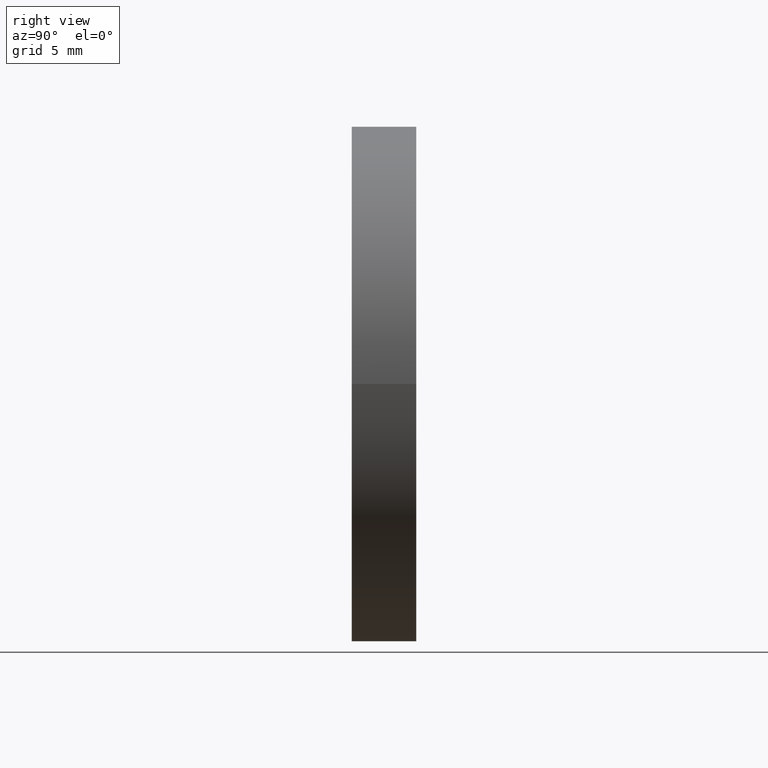
[diagram: clean part render]
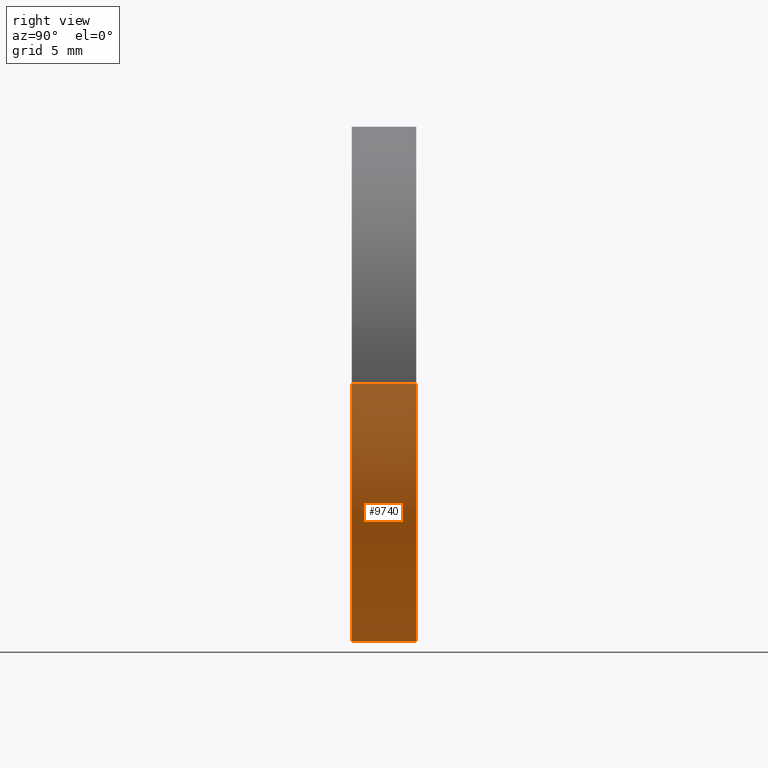
[diagram: same view with one face highlighted and labeled with its STEP entity id]
A machine part, right view. The second image highlights one B-rep face of the part: STEP entity #9740.
In plain terms, the highlighted cylindrical surface (partial cylindrical patch) has radius 20 mm, axis along (0, 1, -0).
Its self-contained STEP definition (entity closure, byte-faithful):
#48 = VERTEX_POINT ( 'NONE', #9935 ) ;
#286 = VECTOR ( 'NONE', #4634, 1000.000000000000000 ) ;
#931 = VERTEX_POINT ( 'NONE', #9288 ) ;
#1179 = LINE ( 'NONE', #5608, #286 ) ;
#1191 = DIRECTION ( 'NONE',  ( -1.000000000000000000, 1.387778780781446662E-15, 0.000000000000000000 ) ) ;
#1698 = EDGE_CURVE ( 'NONE', #931, #9611, #1179, .T. ) ;
#2046 = DIRECTION ( 'NONE',  ( 1.387778780781446464E-15, 1.000000000000000000, -0.000000000000000000 ) ) ;
#2667 = CARTESIAN_POINT ( 'NONE',  ( 6.938893903907228378E-15, 4.999999999999997335, 0.000000000000000000 ) ) ;
#2921 = EDGE_LOOP ( 'NONE', ( #7787, #10948, #13937, #4877 ) ) ;
#4261 = CARTESIAN_POINT ( 'NONE',  ( -19.99999999999999645, 5.000000000000024869, 0.000000000000000000 ) ) ;
#4268 = AXIS2_PLACEMENT_3D ( 'NONE', #4927, #10825, #8541 ) ;
#4605 = EDGE_CURVE ( 'NONE', #931, #11825, #5307, .T. ) ;
#4634 = DIRECTION ( 'NONE',  ( 1.387778780781446464E-15, 1.000000000000000000, -0.000000000000000000 ) ) ;
#4635 = CARTESIAN_POINT ( 'NONE',  ( -4.160008679876429443E-29, -2.949029909160572061E-14, 0.000000000000000000 ) ) ;
#4687 = DIRECTION ( 'NONE',  ( 1.387778780781446464E-15, 1.000000000000000000, -0.000000000000000000 ) ) ;
#4877 = ORIENTED_EDGE ( 'NONE', *, *, #11426, .F. ) ;
#4927 = CARTESIAN_POINT ( 'NONE',  ( 6.938893903907189723E-15, 4.999999999999969802, 0.000000000000000000 ) ) ;
#4942 = DIRECTION ( 'NONE',  ( 1.387778780781446464E-15, 1.000000000000000000, -0.000000000000000000 ) ) ;
#5307 = CIRCLE ( 'NONE', #12697, 20.00000000000000000 ) ;
#5608 = CARTESIAN_POINT ( 'NONE',  ( 20.00000000000001066, 4.999999999999969802, 2.449293598294706907E-15 ) ) ;
#6815 = LINE ( 'NONE', #4261, #11815 ) ;
#7548 = FACE_OUTER_BOUND ( 'NONE', #2921, .T. ) ;
#7787 = ORIENTED_EDGE ( 'NONE', *, *, #1698, .F. ) ;
#7910 = CYLINDRICAL_SURFACE ( 'NONE', #12775, 20.00000000000000355 ) ;
#8541 = DIRECTION ( 'NONE',  ( -1.000000000000000000, 1.387778780781444887E-15, 0.000000000000000000 ) ) ;
#8553 = DIRECTION ( 'NONE',  ( -1.000000000000000000, 1.387778780781445478E-15, 0.000000000000000000 ) ) ;
#9288 = CARTESIAN_POINT ( 'NONE',  ( 20.00000000000000000, -5.724587470723465936E-14, 2.449293598294706513E-15 ) ) ;
#9611 = VERTEX_POINT ( 'NONE', #13405 ) ;
#9740 = ADVANCED_FACE ( 'NONE', ( #7548 ), #7910, .T. ) ;
#9904 = CARTESIAN_POINT ( 'NONE',  ( -20.00000000000000000, -1.734723475976788556E-15, 0.000000000000000000 ) ) ;
#9935 = CARTESIAN_POINT ( 'NONE',  ( -20.00000000000000355, 4.999999999999997335, 0.000000000000000000 ) ) ;
#10722 = EDGE_CURVE ( 'NONE', #11825, #48, #6815, .T. ) ;
#10825 = DIRECTION ( 'NONE',  ( 1.387778780781446464E-15, 1.000000000000000000, -0.000000000000000000 ) ) ;
#10948 = ORIENTED_EDGE ( 'NONE', *, *, #4605, .T. ) ;
#11426 = EDGE_CURVE ( 'NONE', #9611, #48, #14104, .T. ) ;
#11815 = VECTOR ( 'NONE', #2046, 1000.000000000000000 ) ;
#11825 = VERTEX_POINT ( 'NONE', #9904 ) ;
#12697 = AXIS2_PLACEMENT_3D ( 'NONE', #4635, #4687, #1191 ) ;
#12775 = AXIS2_PLACEMENT_3D ( 'NONE', #2667, #4942, #8553 ) ;
#13405 = CARTESIAN_POINT ( 'NONE',  ( 20.00000000000001776, 4.999999999999942268, 2.449293598294708091E-15 ) ) ;
#13937 = ORIENTED_EDGE ( 'NONE', *, *, #10722, .T. ) ;
#14104 = CIRCLE ( 'NONE', #4268, 20.00000000000001066 ) ;